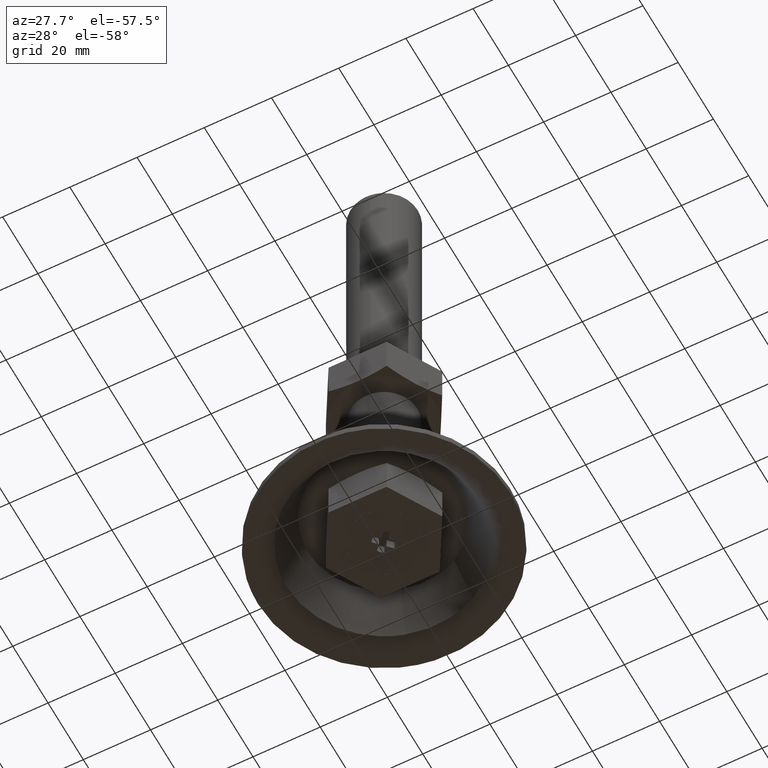
[diagram: clean part render]
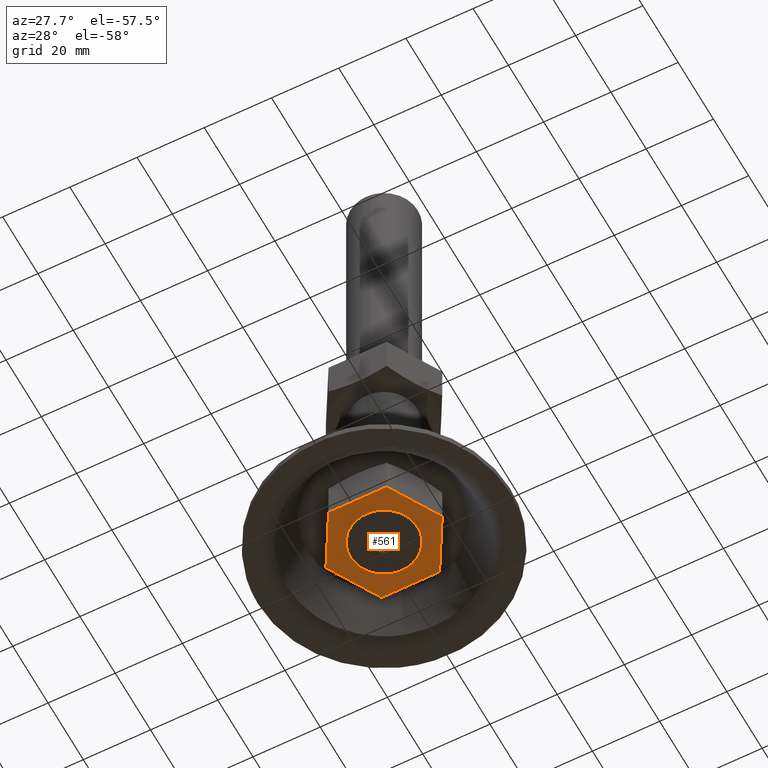
[diagram: same view with one face highlighted and labeled with its STEP entity id]
A machine part, auxiliary view. The second image highlights one B-rep face of the part: STEP entity #561.
In plain terms, the highlighted face is a freeform B-spline surface patch.
Its self-contained STEP definition (entity closure, byte-faithful):
#342=CARTESIAN_POINT('',(-10.0,0.0,74.0));
#343=VERTEX_POINT('',#342);
#344=CARTESIAN_POINT('',(-0.784590957533322,-9.969173337311219,74.0));
#345=VERTEX_POINT('',#344);
#346=CARTESIAN_POINT('',(-10.0,0.0,74.0));
#347=CARTESIAN_POINT('',(-10.0,-9.243904916107946,74.0));
#348=CARTESIAN_POINT('',(-0.784590957533322,-9.969173337311219,74.0));
#356=(BOUNDED_CURVE()B_SPLINE_CURVE(2,(#346,#347,#348),.UNSPECIFIED.,.F.,.U.)B_SPLINE_CURVE_WITH_KNOTS((3,3),(0.0,0.236331300624002),.UNSPECIFIED.)CURVE()GEOMETRIC_REPRESENTATION_ITEM()RATIONAL_B_SPLINE_CURVE((1.0,0.723120658615466,0.969723356153523))REPRESENTATION_ITEM(''));
#357=EDGE_CURVE('',#343,#345,#356,.T.);
#398=CARTESIAN_POINT('',(0.784590957533323,9.969173337311219,74.0));
#399=VERTEX_POINT('',#398);
#405=CARTESIAN_POINT('',(0.784590957533323,9.969173337311219,74.0));
#406=CARTESIAN_POINT('',(0.392901070332750,10.0,74.0));
#407=CARTESIAN_POINT('',(0.0,10.0,74.0));
#408=CARTESIAN_POINT('',(-10.000000000000002,10.000000000000002,74.0));
#409=CARTESIAN_POINT('',(-10.0,0.0,74.0));
#417=(BOUNDED_CURVE()B_SPLINE_CURVE(2,(#405,#406,#407,#408,#409),.UNSPECIFIED.,.F.,.U.)B_SPLINE_CURVE_WITH_KNOTS((3,2,3),(0.736331300624002,0.750000000000000,1.0),.UNSPECIFIED.)CURVE()GEOMETRIC_REPRESENTATION_ITEM()RATIONAL_B_SPLINE_CURVE((0.969723356153523,0.983986122571082,1.0,0.707106781186548,1.0))REPRESENTATION_ITEM(''));
#418=EDGE_CURVE('',#399,#343,#417,.T.);
#441=CARTESIAN_POINT('',(10.0,0.0,74.0));
#442=VERTEX_POINT('',#441);
#443=CARTESIAN_POINT('',(-0.784590957533322,-9.969173337311219,74.0));
#444=CARTESIAN_POINT('',(-0.392901070332749,-10.0,74.000000000000014));
#445=CARTESIAN_POINT('',(0.0,-10.0,74.0));
#446=CARTESIAN_POINT('',(10.000000000000002,-10.000000000000002,74.0));
#447=CARTESIAN_POINT('',(10.0,0.0,74.0));
#455=(BOUNDED_CURVE()B_SPLINE_CURVE(2,(#443,#444,#445,#446,#447),.UNSPECIFIED.,.F.,.U.)B_SPLINE_CURVE_WITH_KNOTS((3,2,3),(0.236331300624002,0.250000000000000,0.500000000000000),.UNSPECIFIED.)CURVE()GEOMETRIC_REPRESENTATION_ITEM()RATIONAL_B_SPLINE_CURVE((0.969723356153523,0.983986122571082,1.0,0.707106781186548,1.0))REPRESENTATION_ITEM(''));
#456=EDGE_CURVE('',#345,#442,#455,.T.);
#458=CARTESIAN_POINT('',(10.0,0.0,74.0));
#459=CARTESIAN_POINT('',(10.0,9.243904916107969,74.0));
#460=CARTESIAN_POINT('',(0.784590957533323,9.969173337311219,74.0));
#468=(BOUNDED_CURVE()B_SPLINE_CURVE(2,(#458,#459,#460),.UNSPECIFIED.,.F.,.U.)B_SPLINE_CURVE_WITH_KNOTS((3,3),(0.500000000000000,0.736331300624002),.UNSPECIFIED.)CURVE()GEOMETRIC_REPRESENTATION_ITEM()RATIONAL_B_SPLINE_CURVE((1.0,0.723120658615465,0.969723356153524))REPRESENTATION_ITEM(''));
#469=EDGE_CURVE('',#442,#399,#468,.T.);
#506=CARTESIAN_POINT('',(-19.028269159722889,16.498499941854170,74.0));
#507=CARTESIAN_POINT('',(19.028268231678581,16.498499941854170,74.0));
#508=CARTESIAN_POINT('',(-19.028269159722889,-16.498500746516878,74.0));
#509=CARTESIAN_POINT('',(19.028268231678581,-16.498500746516878,74.0));
#510=B_SPLINE_SURFACE_WITH_KNOTS('',1,1,((#506,#508),(#507,#509)),.UNSPECIFIED.,.F.,.F.,.U.,(2,2),(2,2),(0.0,38.056537391401477),(0.0,32.997000688371060),.UNSPECIFIED.);
#511=CARTESIAN_POINT('',(-8.639746000000001,-15.0,74.0));
#512=VERTEX_POINT('',#511);
#513=CARTESIAN_POINT('',(-17.300000000000001,0.0,74.0));
#514=VERTEX_POINT('',#513);
#515=CARTESIAN_POINT('',(-8.639746000000001,-15.0,74.0));
#516=CARTESIAN_POINT('',(-17.300000000000001,0.0,74.0));
#517=QUASI_UNIFORM_CURVE('',1,(#515,#516),.UNSPECIFIED.,.F.,.U.);
#518=EDGE_CURVE('',#512,#514,#517,.T.);
#519=ORIENTED_EDGE('',*,*,#518,.F.);
#520=CARTESIAN_POINT('',(8.639746000000001,-15.0,74.0));
#521=VERTEX_POINT('',#520);
#522=CARTESIAN_POINT('',(8.639746000000001,-15.0,74.0));
#523=CARTESIAN_POINT('',(-8.639746000000001,-15.0,74.0));
#524=QUASI_UNIFORM_CURVE('',1,(#522,#523),.UNSPECIFIED.,.F.,.U.);
#525=EDGE_CURVE('',#521,#512,#524,.T.);
#526=ORIENTED_EDGE('',*,*,#525,.F.);
#527=CARTESIAN_POINT('',(17.300000000000001,0.0,74.0));
#528=VERTEX_POINT('',#527);
#529=CARTESIAN_POINT('',(17.300000000000001,0.0,74.0));
#530=CARTESIAN_POINT('',(8.639746000000001,-15.0,74.0));
#531=QUASI_UNIFORM_CURVE('',1,(#529,#530),.UNSPECIFIED.,.F.,.U.);
#532=EDGE_CURVE('',#528,#521,#531,.T.);
#533=ORIENTED_EDGE('',*,*,#532,.F.);
#534=CARTESIAN_POINT('',(8.639746000000001,15.0,74.0));
#535=VERTEX_POINT('',#534);
#536=CARTESIAN_POINT('',(8.639746000000001,15.0,74.0));
#537=CARTESIAN_POINT('',(17.300000000000001,0.0,74.0));
#538=QUASI_UNIFORM_CURVE('',1,(#536,#537),.UNSPECIFIED.,.F.,.U.);
#539=EDGE_CURVE('',#535,#528,#538,.T.);
#540=ORIENTED_EDGE('',*,*,#539,.F.);
#541=CARTESIAN_POINT('',(-8.639746000000001,15.0,74.0));
#542=VERTEX_POINT('',#541);
#543=CARTESIAN_POINT('',(-8.639746000000001,15.0,74.0));
#544=CARTESIAN_POINT('',(8.639746000000001,15.0,74.0));
#545=QUASI_UNIFORM_CURVE('',1,(#543,#544),.UNSPECIFIED.,.F.,.U.);
#546=EDGE_CURVE('',#542,#535,#545,.T.);
#547=ORIENTED_EDGE('',*,*,#546,.F.);
#548=CARTESIAN_POINT('',(-17.300000000000001,0.0,74.0));
#549=CARTESIAN_POINT('',(-8.639746000000001,15.0,74.0));
#550=QUASI_UNIFORM_CURVE('',1,(#548,#549),.UNSPECIFIED.,.F.,.U.);
#551=EDGE_CURVE('',#514,#542,#550,.T.);
#552=ORIENTED_EDGE('',*,*,#551,.F.);
#553=EDGE_LOOP('',(#519,#526,#533,#540,#547,#552));
#554=FACE_OUTER_BOUND('',#553,.T.);
#555=ORIENTED_EDGE('',*,*,#469,.F.);
#556=ORIENTED_EDGE('',*,*,#456,.F.);
#557=ORIENTED_EDGE('',*,*,#357,.F.);
#558=ORIENTED_EDGE('',*,*,#418,.F.);
#559=EDGE_LOOP('',(#555,#556,#557,#558));
#560=FACE_BOUND('',#559,.T.);
#561=ADVANCED_FACE('',(#554,#560),#510,.F.);